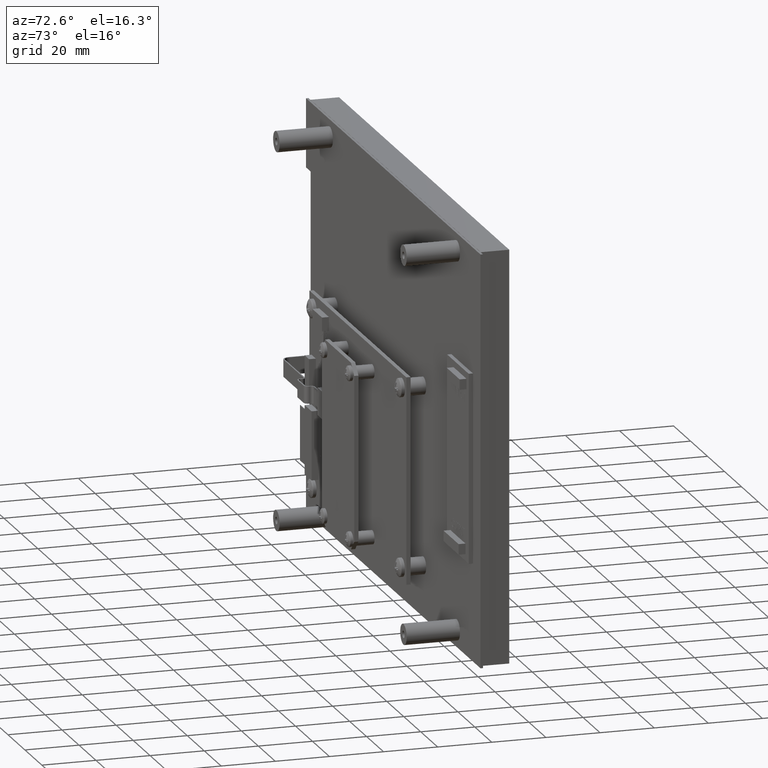
[diagram: clean part render]
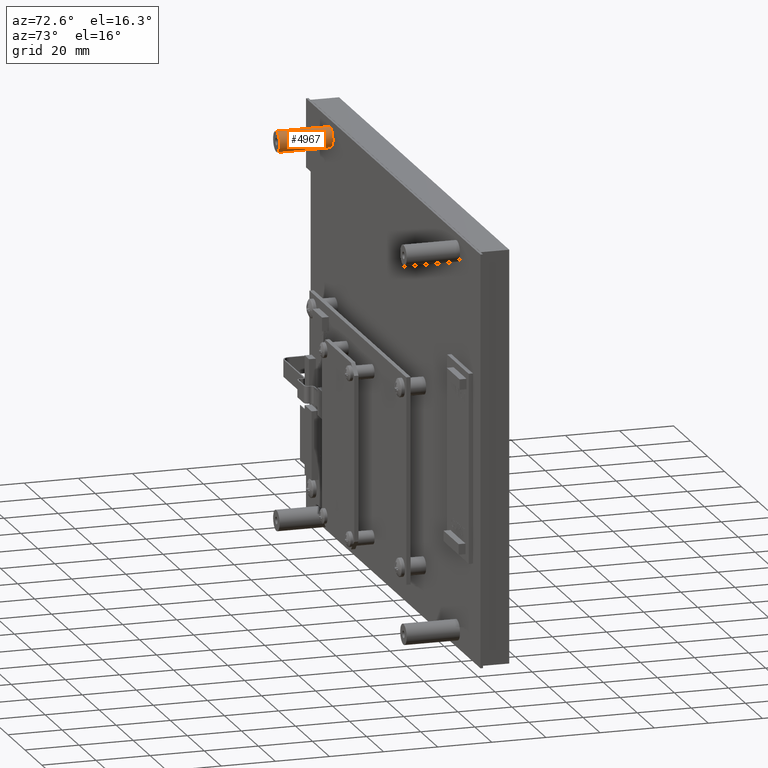
[diagram: same view with one face highlighted and labeled with its STEP entity id]
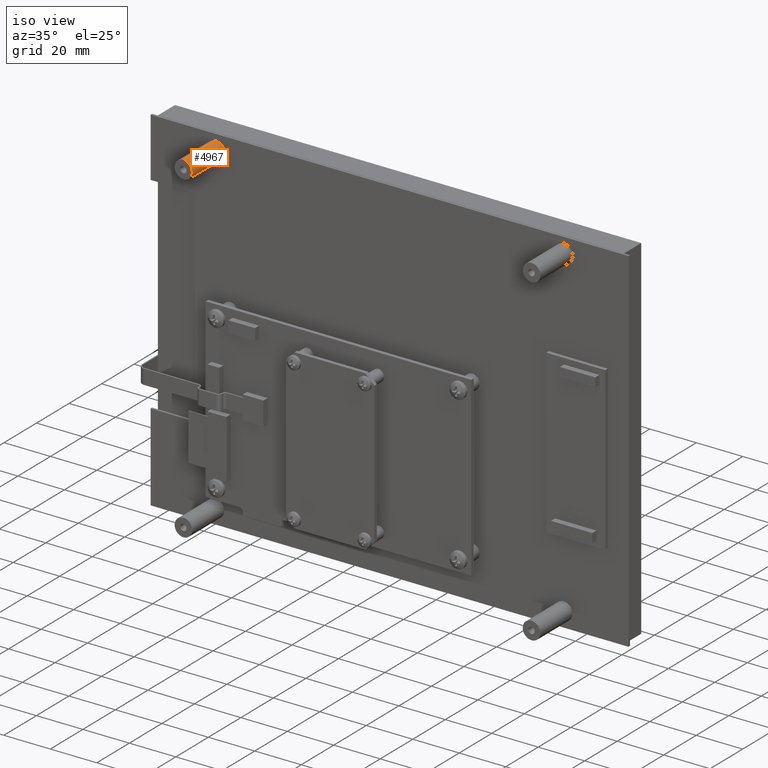
[diagram: same view with one face highlighted and labeled with its STEP entity id]
A machine part, auxiliary view. The second image highlights one B-rep face of the part: STEP entity #4967.
A second angle (iso view) of the same face is appended — the face is thin or edge-on in the first view.
In plain terms, the highlighted cylindrical surface (edge-blend (fillet) strip) has radius 3.81 mm, axis along (0, 1, 0).
Its self-contained STEP definition (entity closure, byte-faithful):
#2005 = CARTESIAN_POINT ( 'NONE',  ( -2.949999999999999700, -0.7765000000000000800, 2.890500000000000300 ) ) ;
#2040 = CARTESIAN_POINT ( 'NONE',  ( -2.949999999999999700, -0.7765000000000000800, 2.590500000000000500 ) ) ;
#3737 = CARTESIAN_POINT ( 'NONE',  ( -2.949999999999999700, 0.0000000000000000000, 2.590500000000000500 ) ) ;
#3744 = CARTESIAN_POINT ( 'NONE',  ( -2.949999999999999700, 0.0000000000000000000, 2.890500000000000300 ) ) ;
#4801 = EDGE_CURVE ( 'NONE', #7341, #7306, #7821, .T. ) ;
#4802 = EDGE_CURVE ( 'NONE', #7341, #12975, #7819, .T. ) ;
#4803 = EDGE_CURVE ( 'NONE', #12975, #12982, #7823, .T. ) ;
#4804 = EDGE_CURVE ( 'NONE', #7306, #12982, #7826, .T. ) ;
#4967 = ADVANCED_FACE ( 'NONE', ( #8052 ), #8054, .T. ) ;
#6593 = ORIENTED_EDGE ( 'NONE', *, *, #4801, .F. ) ;
#6594 = ORIENTED_EDGE ( 'NONE', *, *, #4802, .T. ) ;
#6595 = ORIENTED_EDGE ( 'NONE', *, *, #4803, .T. ) ;
#6596 = ORIENTED_EDGE ( 'NONE', *, *, #4804, .F. ) ;
#7306 = VERTEX_POINT ( 'NONE', #2005 ) ;
#7341 = VERTEX_POINT ( 'NONE', #2040 ) ;
#7819 = LINE ( 'NONE', #12231, #7825 ) ;
#7821 = CIRCLE ( 'NONE', #8142, 0.1499999999999997700 ) ;
#7823 = CIRCLE ( 'NONE', #8143, 0.1499999999999997700 ) ;
#7825 = VECTOR ( 'NONE', #12228, 39.37007874015748100 ) ;
#7826 = LINE ( 'NONE', #12235, #7828 ) ;
#7828 = VECTOR ( 'NONE', #12230, 39.37007874015748100 ) ;
#8052 = FACE_OUTER_BOUND ( 'NONE', #14419, .T. ) ;
#8054 = CYLINDRICAL_SURFACE ( 'NONE', #8247, 0.1499999999999997700 ) ;
#8142 = AXIS2_PLACEMENT_3D ( 'NONE', #12232, #12233, #12234 ) ;
#8143 = AXIS2_PLACEMENT_3D ( 'NONE', #12236, #12237, #12238 ) ;
#8247 = AXIS2_PLACEMENT_3D ( 'NONE', #15297, #15295, #15293 ) ;
#12228 = DIRECTION ( 'NONE',  ( -0.0000000000000000000, 1.000000000000000000, -0.0000000000000000000 ) ) ;
#12230 = DIRECTION ( 'NONE',  ( -0.0000000000000000000, 1.000000000000000000, -0.0000000000000000000 ) ) ;
#12231 = CARTESIAN_POINT ( 'NONE',  ( -2.949999999999999700, -0.7765000000000000800, 2.590500000000000500 ) ) ;
#12232 = CARTESIAN_POINT ( 'NONE',  ( -2.949999999999999700, -0.7765000000000000800, 2.740500000000000400 ) ) ;
#12233 = DIRECTION ( 'NONE',  ( 0.0000000000000000000, -1.000000000000000000, 0.0000000000000000000 ) ) ;
#12234 = DIRECTION ( 'NONE',  ( 0.0000000000000000000, 0.0000000000000000000, -1.000000000000000000 ) ) ;
#12235 = CARTESIAN_POINT ( 'NONE',  ( -2.949999999999999700, -0.7765000000000000800, 2.890500000000000300 ) ) ;
#12236 = CARTESIAN_POINT ( 'NONE',  ( -2.949999999999999700, 0.0000000000000000000, 2.740500000000000400 ) ) ;
#12237 = DIRECTION ( 'NONE',  ( -0.0000000000000000000, -1.000000000000000000, -0.0000000000000000000 ) ) ;
#12238 = DIRECTION ( 'NONE',  ( 0.0000000000000000000, 0.0000000000000000000, 1.000000000000000000 ) ) ;
#12975 = VERTEX_POINT ( 'NONE', #3737 ) ;
#12982 = VERTEX_POINT ( 'NONE', #3744 ) ;
#14419 = EDGE_LOOP ( 'NONE', ( #6593, #6594, #6595, #6596 ) ) ;
#15293 = DIRECTION ( 'NONE',  ( 0.0000000000000000000, 0.0000000000000000000, 1.000000000000000000 ) ) ;
#15295 = DIRECTION ( 'NONE',  ( -0.0000000000000000000, 1.000000000000000000, -0.0000000000000000000 ) ) ;
#15297 = CARTESIAN_POINT ( 'NONE',  ( -2.949999999999999700, -0.7765000000000000800, 2.740500000000000400 ) ) ;